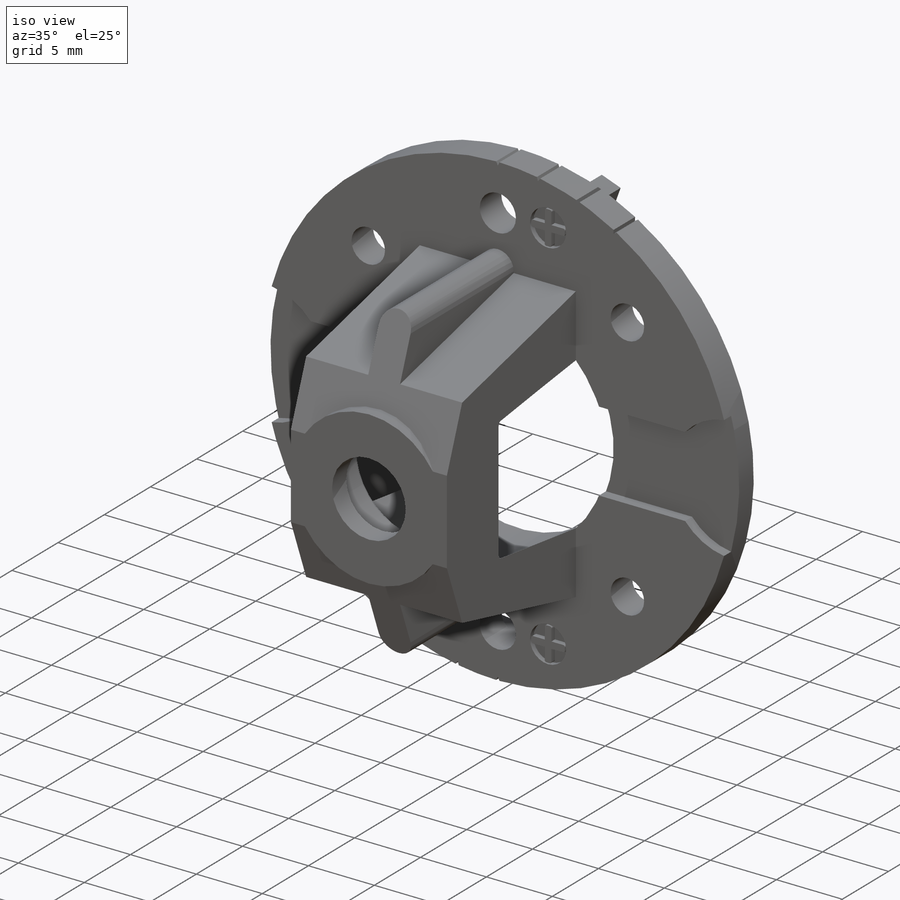
[diagram: iso view]
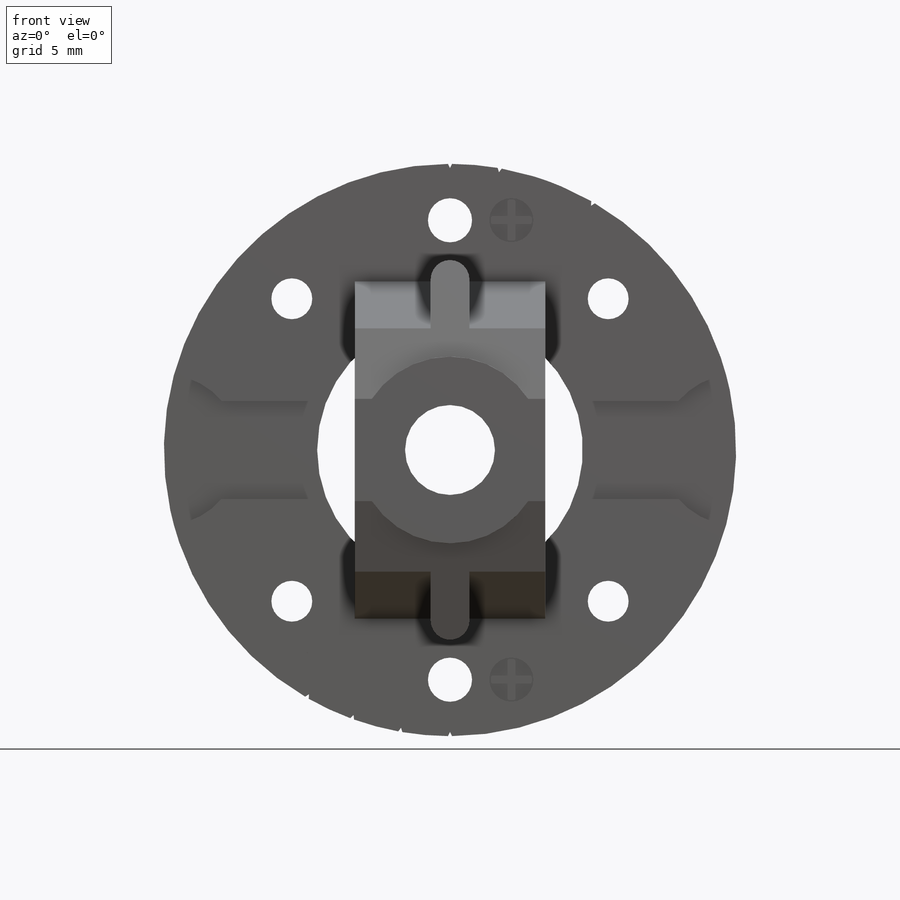
[diagram: front view]
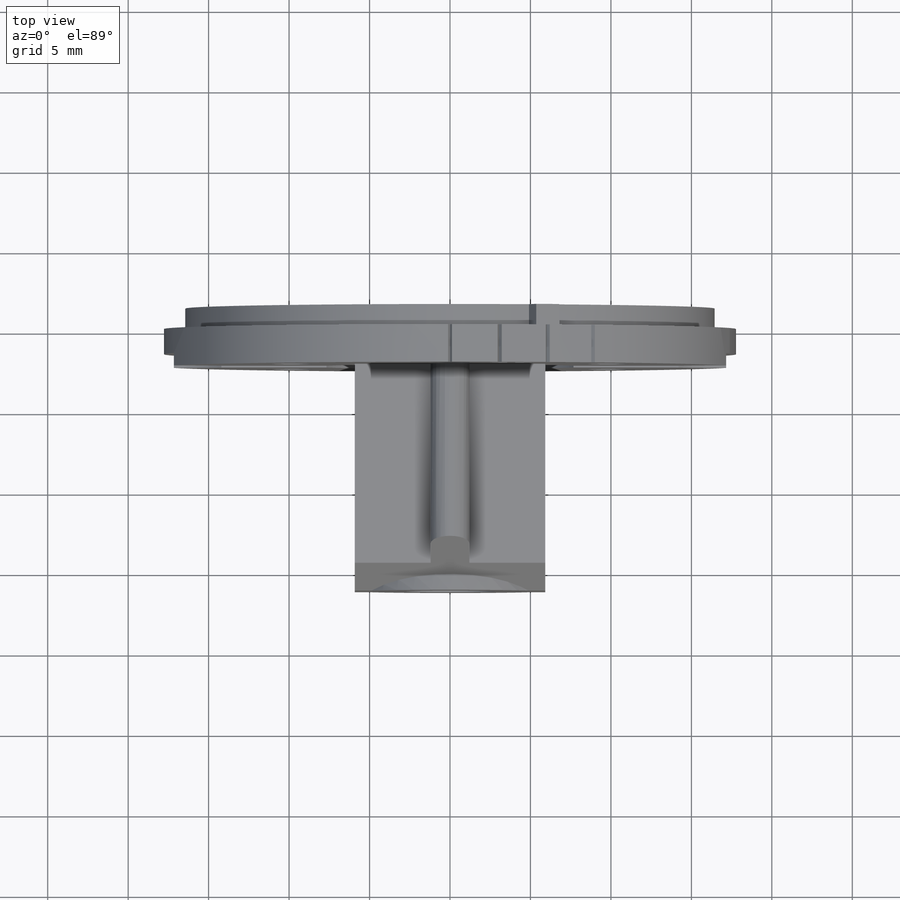
[diagram: top view]
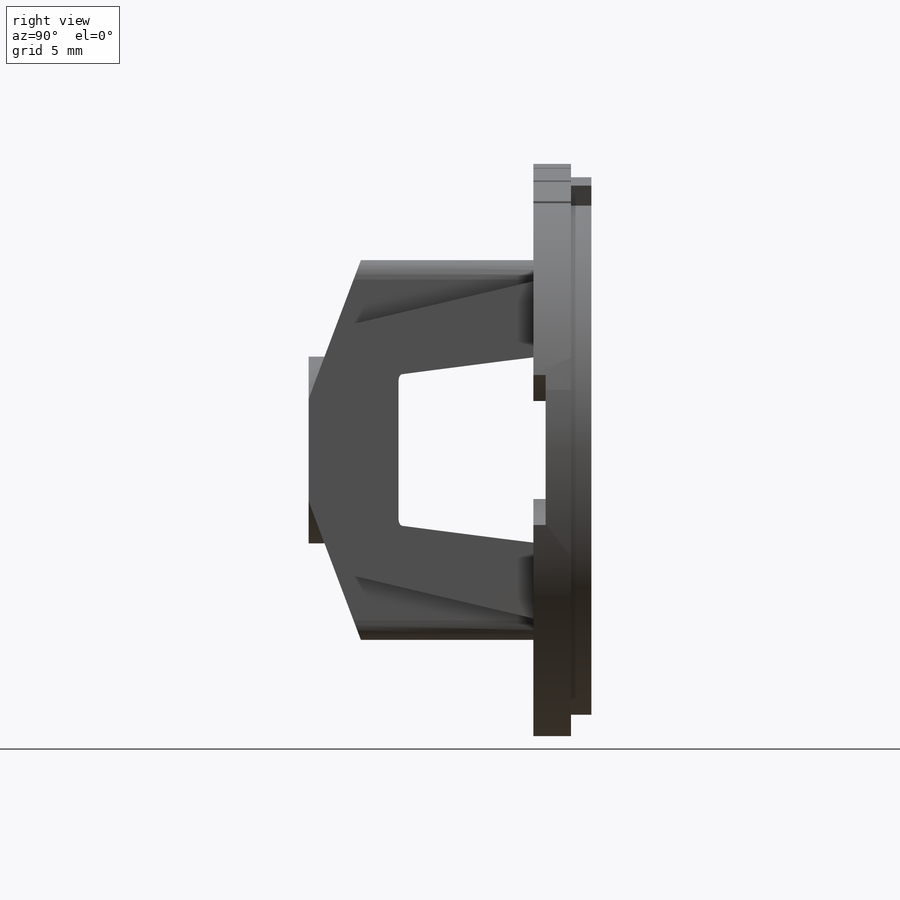
[diagram: right view]
SOLIDWORKS PART (.sldprt)
format: sldprt  version: not decoded by parser v0  size: 569,856 bytes
history: native  units: mm
features: sketch x17, cut_extrude x9, extrude x6, material x1, cut_revolve x1 (+11 scaffold rows collapsed)
feature tree (45):
  scaffold x11  (default folders/planes/origin — collapsed)
  material  "Material <not specified>"
  sketch  "Sketch1"  dims[D1=35.56mm D2=5.588mm]
  extrude  "Boss-Extrude1"  Depth=2.3368mm
  sketch  "Sketch2"  dims[D1=20.955mm D2=11.8364mm D3=10.4775mm D4=5.9182mm]
  extrude  "Boss-Extrude2"  Depth=13.97mm
  sketch  "Sketch3"  dims[D2=2.921mm D3=3.175mm D1=1.651mm]
  cut_extrude  "Cut-Extrude1"  Depth=13.97mm
  sketch  "Sketch4"  dims[D1=11.6078mm]
  extrude  "Boss-Extrude3"  Depth=2.54mm
  sketch  "Sketch5"  dims[D1=2.413mm D2=10.5918mm]
  extrude  "Boss-Extrude4"  Depth=12.7mm
  sketch  "Sketch6"  dims[D1=0.0mm]
  cut_extrude  "Cut-Extrude2"  [1 undecoded]
  sketch  "Sketch7"
  cut_extrude  "Cut-Extrude3"  [1 undecoded]
  sketch  "Sketch8"  dims[D1=16.51mm]
  cut_extrude  "Cut-Extrude4"  [1 undecoded]
  sketch  "Sketch9"  dims[c1.D1=7.5438mm c1.D2=4.7498mm c1.D3=1.524mm c1.D4=4.064mm c2.D1=4.7498mm]
  cut_revolve  "Cut-Revolve1"  Angle=360deg
  sketch  "Sketch10"  dims[D1=0.0mm D2=1.3208mm D3=1.016mm]
  extrude  "Boss-Extrude5"  Depth=1.27mm
  sketch  "Sketch11"  dims[D1=9.398mm D2=3.048mm]
  cut_extrude  "Cut-Extrude5"  Depth=0.762mm
  sketch  "Sketch12"  dims[c1.D1=~20.921023mm c2.D1=20.0deg c2.D2=0.762mm c2.D3=0.762mm]
  extrude  "Boss-Extrude6"  [1 undecoded]
  sketch  "Sketch13"  dims[D1=2.7432mm D2=14.2748mm]
  cut_extrude  "Cut-Extrude6"  [1 undecoded]
  sketch  "Sketch14"  dims[c1.D3=0.127mm c1.D1=0.254mm c1.D2=0.254mm c1.D4=1.27mm c1.D5=1.27mm c2.D1=1.905mm]
  cut_extrude  "Cut-Extrude7"  Depth=0.381mm
  sketch  "Sketch15"  dims[c1.D1=~19.273887mm c2.D1=5.0deg c2.D2=0.254mm c2.D3=0.127mm c2.D4=17.78mm c3.D4=5.0deg c3.D5=17.78mm c4.D5=5.0deg c4.D6=17.78mm c5.D6=10.0deg c5.D1=~23.336209mm c6.D1=15.0deg]
  cut_extrude  "Cut-Extrude8"  [1 undecoded]
  sketch  "Sketch18"  dims[D3=2.54mm D1=18.796mm D2=19.6596mm D4=9.398mm D5=9.8298mm]
  sketch  "Sketch19"  dims[D1=0.0mm]
  cut_extrude  "Cut-Extrude9"  [1 undecoded]
decode coverage: 25 of 33 modeling features carry decoded parameters
note: ~ marks probable driven/reference dimensions
note: 7 parameter values undecoded
summary: no parameter record found for 7 features
note: suppression state not decoded; provenance and decode notes live in map.json
